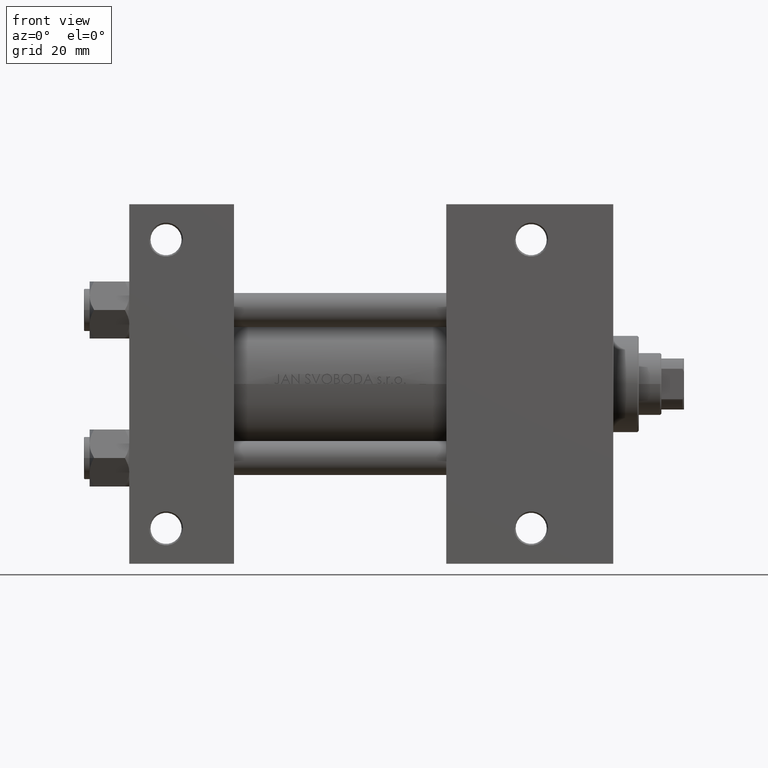
[diagram: clean part render]
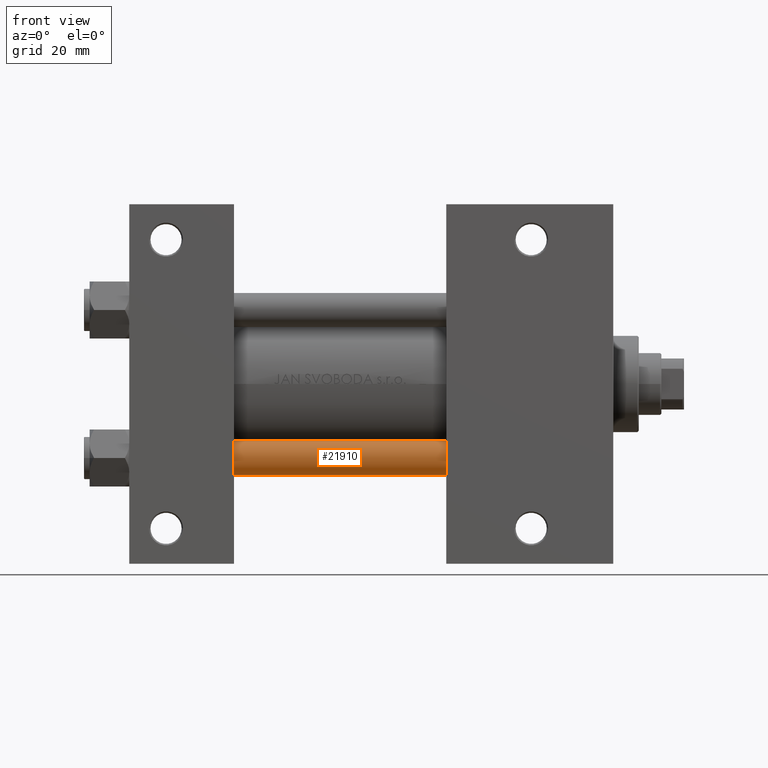
[diagram: same view with one face highlighted and labeled with its STEP entity id]
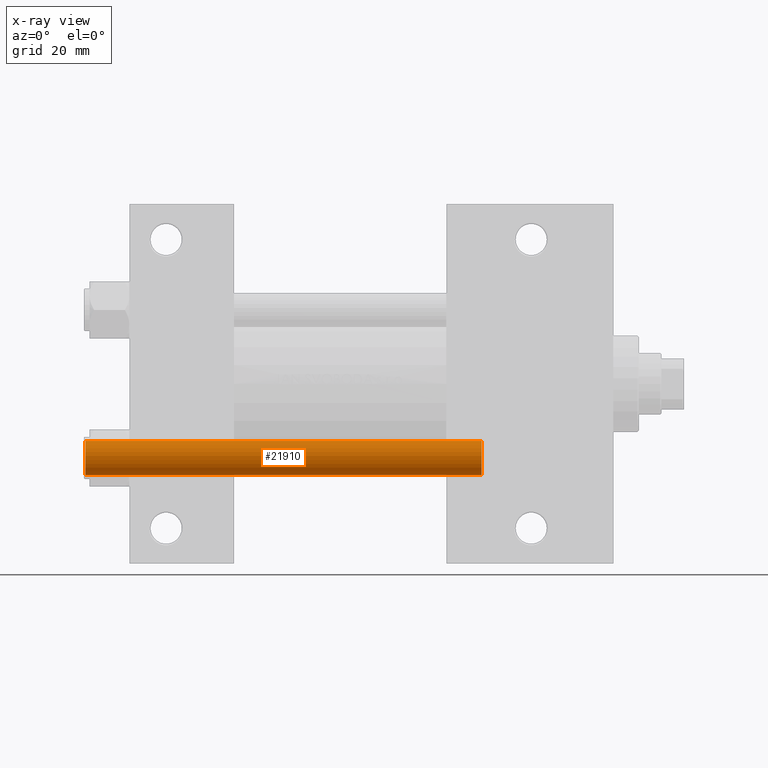
[diagram: x-ray of the same camera — body ghosted, the highlighted face saturated]
A machine part, front view. The second image highlights one B-rep face of the part: STEP entity #21910.
The next image is the same camera in x-ray: the body ghosted, the highlighted face saturated — about 0% of this face is hidden behind the body in this view.
In plain terms, the highlighted cylindrical surface (edge-blend (fillet) strip) has radius 6 mm, axis along (-1, 0, 0).
Its self-contained STEP definition (entity closure, byte-faithful):
#5437 = VERTEX_POINT ( 'NONE', #47453 ) ;
#7021 = ORIENTED_EDGE ( 'NONE', *, *, #17713, .T. ) ;
#7026 = VERTEX_POINT ( 'NONE', #10680 ) ;
#7427 = FACE_OUTER_BOUND ( 'NONE', #15999, .T. ) ;
#7498 = ORIENTED_EDGE ( 'NONE', *, *, #32479, .F. ) ;
#7668 = VERTEX_POINT ( 'NONE', #43704 ) ;
#7916 = CYLINDRICAL_SURFACE ( 'NONE', #24706, 6.000000000000000888 ) ;
#9359 = VECTOR ( 'NONE', #47805, 1000.000000000000000 ) ;
#10680 = CARTESIAN_POINT ( 'NONE',  ( -6.000000000000000888, 0.000000000000000000, 140.5000000000000000 ) ) ;
#11994 = ORIENTED_EDGE ( 'NONE', *, *, #46245, .T. ) ;
#12221 = VECTOR ( 'NONE', #28319, 1000.000000000000000 ) ;
#13804 = DIRECTION ( 'NONE',  ( 0.000000000000000000, 0.000000000000000000, -1.000000000000000000 ) ) ;
#15027 = AXIS2_PLACEMENT_3D ( 'NONE', #23168, #19440, #38352 ) ;
#15479 = ORIENTED_EDGE ( 'NONE', *, *, #31866, .T. ) ;
#15999 = EDGE_LOOP ( 'NONE', ( #15479, #11994, #7021, #7498 ) ) ;
#16564 = CARTESIAN_POINT ( 'NONE',  ( 0.000000000000000000, 0.000000000000000000, 140.5000000000000000 ) ) ;
#17366 = CARTESIAN_POINT ( 'NONE',  ( -6.000000000000000888, 0.000000000000000000, 141.0000000000000000 ) ) ;
#17713 = EDGE_CURVE ( 'NONE', #28629, #5437, #43646, .T. ) ;
#17755 = CIRCLE ( 'NONE', #32839, 6.000000000000000888 ) ;
#17928 = LINE ( 'NONE', #47325, #9359 ) ;
#19440 = DIRECTION ( 'NONE',  ( -0.000000000000000000, -0.000000000000000000, 1.000000000000000000 ) ) ;
#21910 = ADVANCED_FACE ( 'NONE', ( #7427 ), #7916, .T. ) ;
#23168 = CARTESIAN_POINT ( 'NONE',  ( 0.000000000000000000, 0.000000000000000000, 0.5000000000000004441 ) ) ;
#24706 = AXIS2_PLACEMENT_3D ( 'NONE', #38294, #49256, #37804 ) ;
#28319 = DIRECTION ( 'NONE',  ( -0.000000000000000000, -0.000000000000000000, -1.000000000000000000 ) ) ;
#28629 = VERTEX_POINT ( 'NONE', #34520 ) ;
#31866 = EDGE_CURVE ( 'NONE', #7026, #7668, #17755, .T. ) ;
#31977 = DIRECTION ( 'NONE',  ( 1.000000000000000000, 0.000000000000000000, 0.000000000000000000 ) ) ;
#32279 = LINE ( 'NONE', #17366, #12221 ) ;
#32479 = EDGE_CURVE ( 'NONE', #7026, #5437, #32279, .T. ) ;
#32839 = AXIS2_PLACEMENT_3D ( 'NONE', #16564, #13804, #31977 ) ;
#34520 = CARTESIAN_POINT ( 'NONE',  ( 6.000000000000000888, 7.347880794884120722E-16, 0.5000000000000004441 ) ) ;
#37804 = DIRECTION ( 'NONE',  ( -1.000000000000000000, 0.000000000000000000, 0.000000000000000000 ) ) ;
#38294 = CARTESIAN_POINT ( 'NONE',  ( 0.000000000000000000, 0.000000000000000000, 141.0000000000000000 ) ) ;
#38352 = DIRECTION ( 'NONE',  ( 1.000000000000000000, 0.000000000000000000, 0.000000000000000000 ) ) ;
#43646 = CIRCLE ( 'NONE', #15027, 6.000000000000000888 ) ;
#43704 = CARTESIAN_POINT ( 'NONE',  ( 6.000000000000000888, 7.347880794884120722E-16, 140.5000000000000000 ) ) ;
#46245 = EDGE_CURVE ( 'NONE', #7668, #28629, #17928, .T. ) ;
#47325 = CARTESIAN_POINT ( 'NONE',  ( 6.000000000000000888, 7.347880794884120722E-16, 141.0000000000000000 ) ) ;
#47453 = CARTESIAN_POINT ( 'NONE',  ( -6.000000000000000888, 0.000000000000000000, 0.5000000000000004441 ) ) ;
#47805 = DIRECTION ( 'NONE',  ( -0.000000000000000000, -0.000000000000000000, -1.000000000000000000 ) ) ;
#49256 = DIRECTION ( 'NONE',  ( -0.000000000000000000, -0.000000000000000000, -1.000000000000000000 ) ) ;